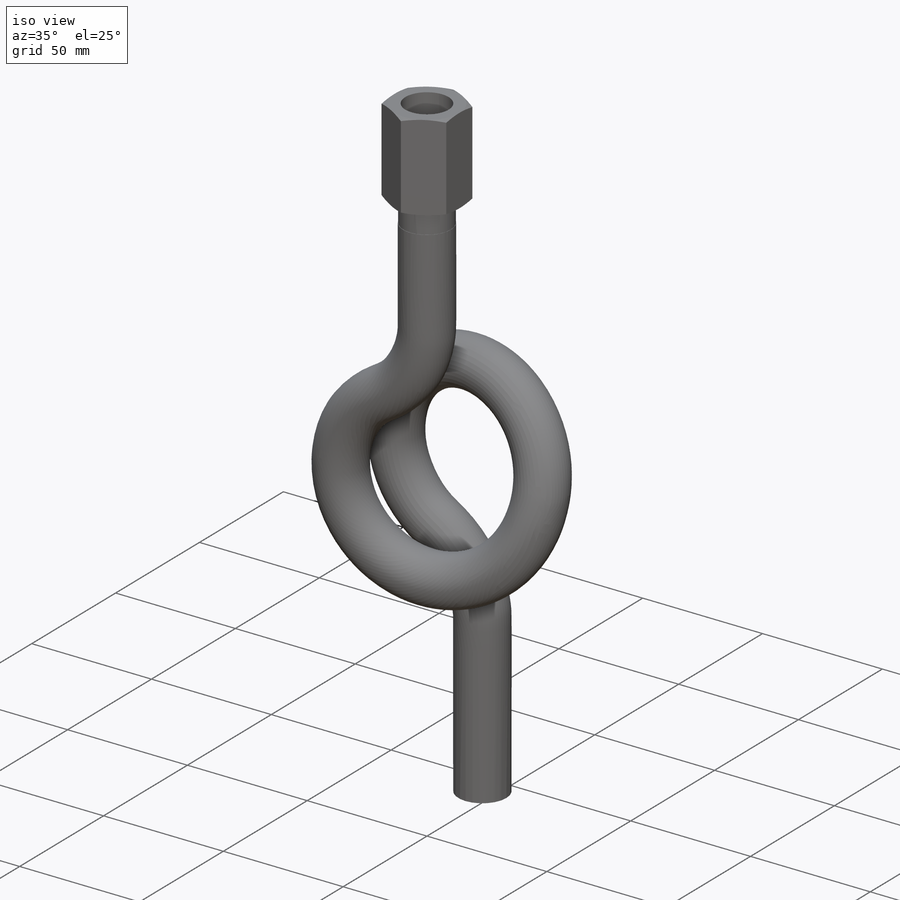
[diagram: iso view]
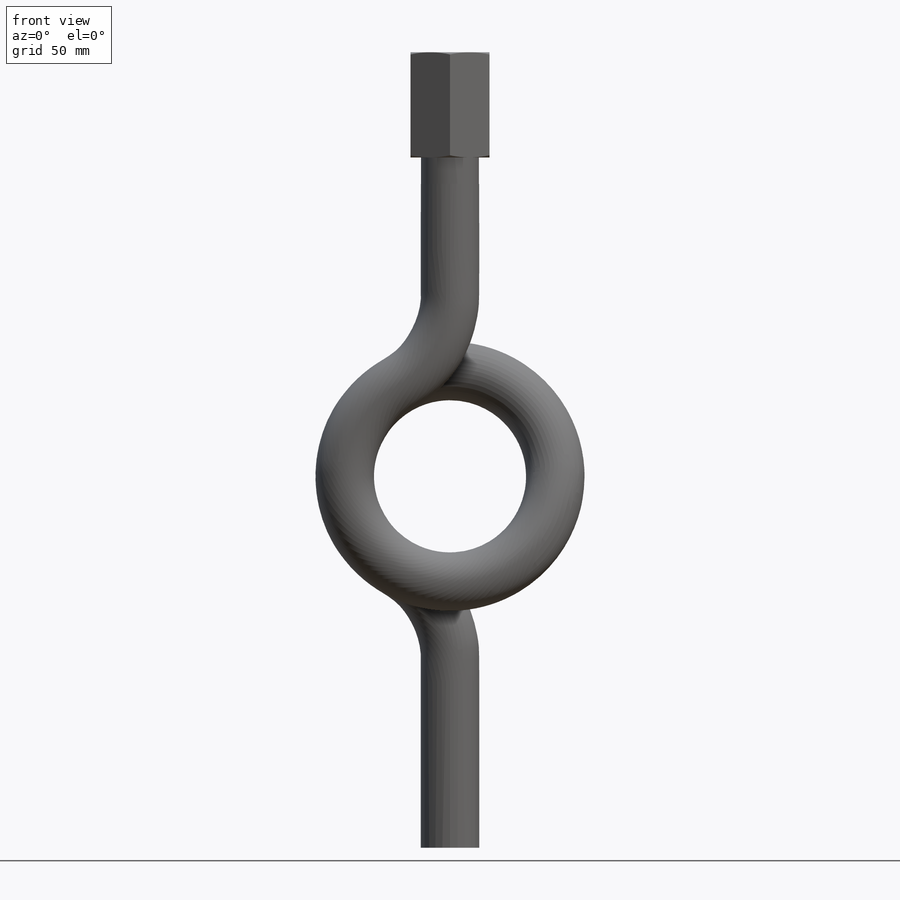
[diagram: front view]
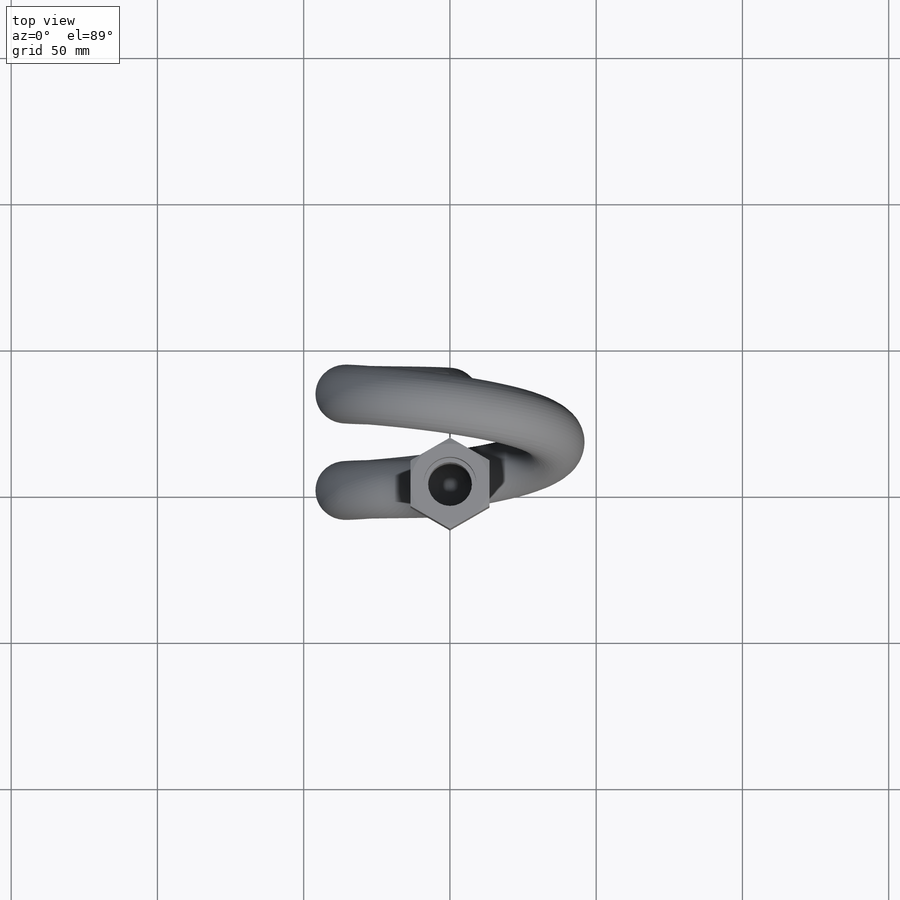
[diagram: top view]
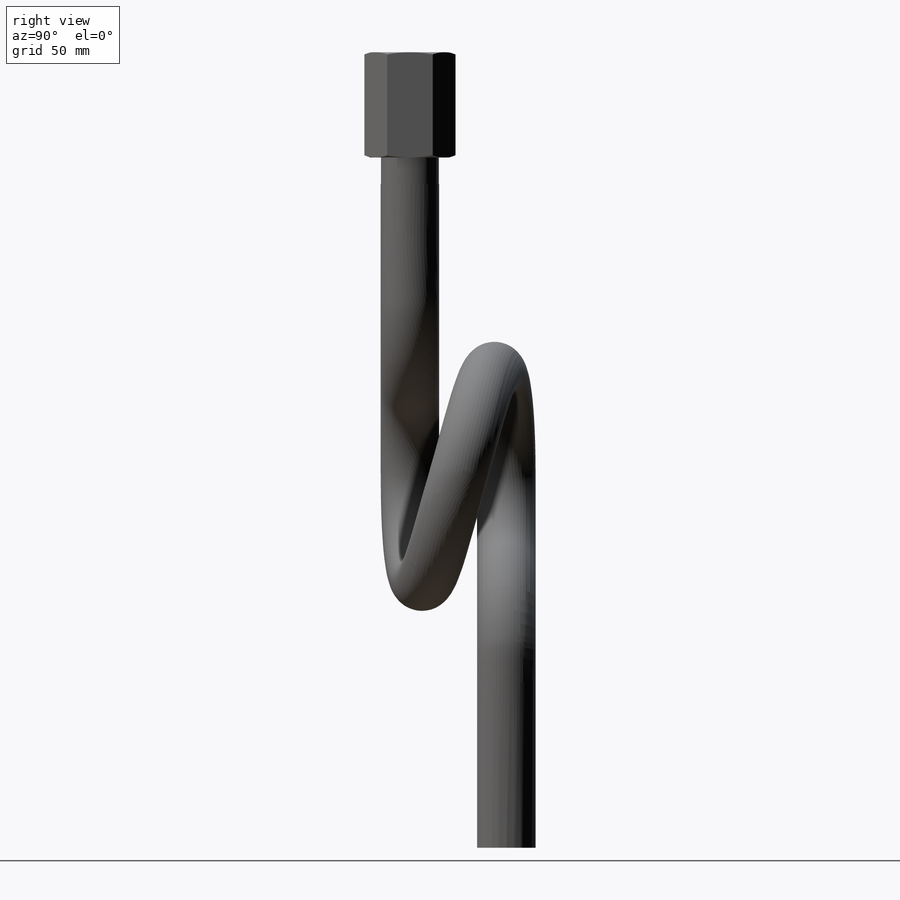
[diagram: right view]
SOLIDWORKS PART (.sldprt)
format: sldprt  version: not decoded by parser v0  size: 750,592 bytes
history: native  units: mm
features: sketch x8, plane x5, chamfer x2, material x1, helix x1, sweep x1, cut_extrude x1, cut_revolve x1 + 1 further entry (+8 scaffold rows collapsed)
feature tree (29):
  scaffold x8  (default folders/planes/origin — collapsed)
  material  "Materiál <není určen>"
  "Těla ploch"
  plane  "Horní"
  plane  "Přední"
  plane  "Pravá"
  sketch  "Skica2"  dims[c1.D1=~44.238847mm c1.D2=20.0mm c1.D3=~12.956866mm c2.D1=53.0mm c2.D3=2.5mm]
  plane  "Rovina1"  Offset=3.5mm
  sketch  "Skica3"  dims[c1.D1=~91.39915mm c1.D2=72.0mm c1.D3=92.0mm c2.D1=20.0mm c2.D2=10.0mm c2.D4=254.0mm]
  plane  "Rovina2"
  sketch  "Skica4"  dims[D2=36.0mm]
  sketch  "Skica5"
  helix  "Šroubovice/spirála2"  Pitch=16.5mm
  sketch  "3DSkica7"
  sweep  "Táhnout po křivce4"
  sketch  "Skica6"  dims[D1=0.1mm]
  cut_extrude  "Odebrat vysunutím1"  Depth=27mm
  chamfer  "Zkosení1"  Distance=0.5mm Angle=45deg
  sketch  "Skica7"  dims[D2=18.0mm D1=27.0mm]
  chamfer  "Přidat vysunutím1"  Distance=36mm
  sketch  "Skica8"  dims[c1.D1=~5.499754mm c2.D1=20.0deg c2.D2=~9.81098mm c3.D2=20.0deg]
  cut_revolve  "Odebrat rotací1"  Angle=360deg
decode coverage: 11 of 14 modeling features carry decoded parameters; 1 rows unclassified (native names shown)
note: ~ marks probable driven/reference dimensions
note: suppression state not decoded; provenance and decode notes live in map.json
